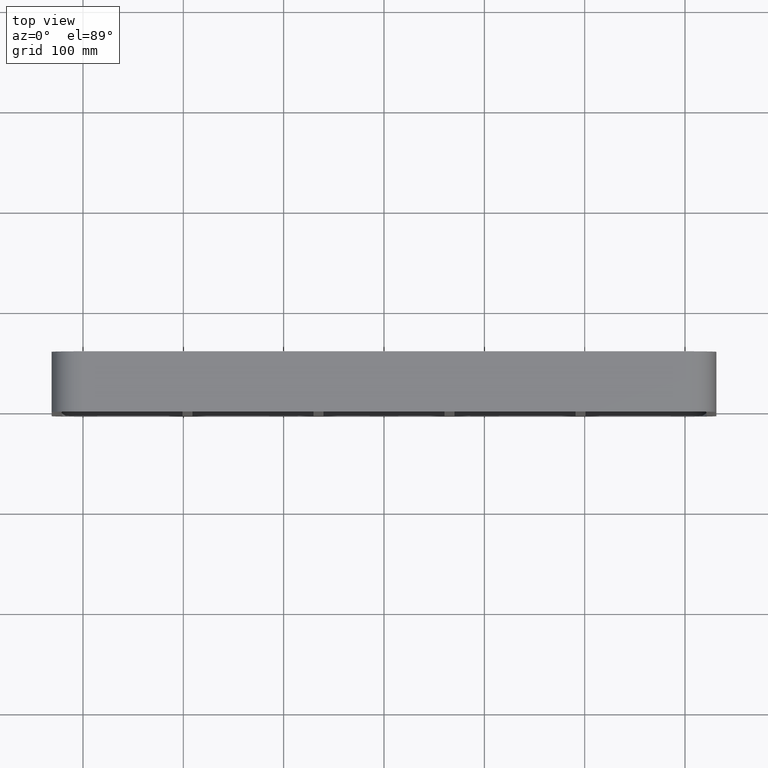
[diagram: clean part render]
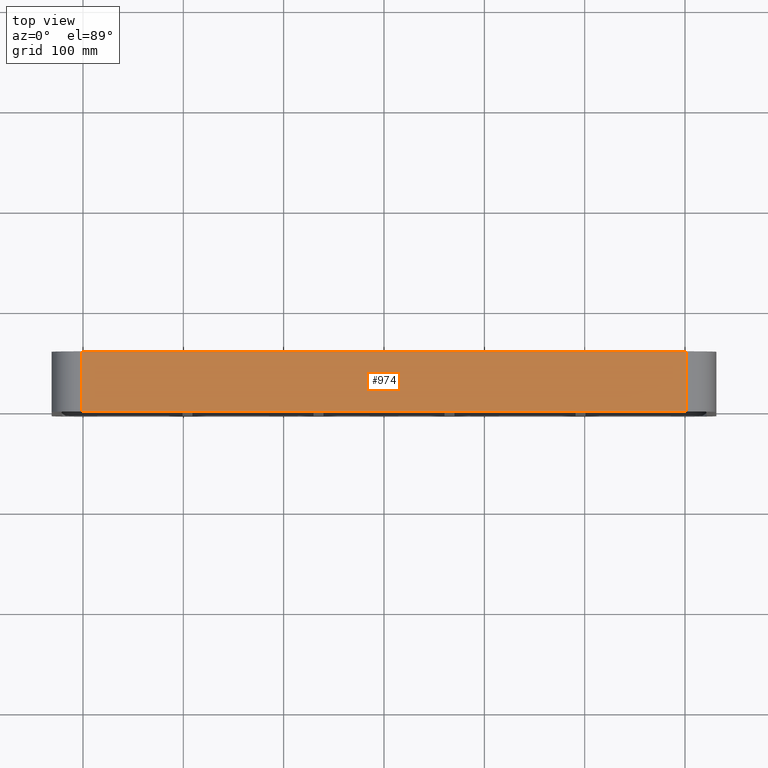
[diagram: same view with one face highlighted and labeled with its STEP entity id]
A machine part, top view. The second image highlights one B-rep face of the part: STEP entity #974.
In plain terms, the highlighted planar face has unit normal (0, 0, 1).
Its self-contained STEP definition (entity closure, byte-faithful):
#700=CARTESIAN_POINT('',(301.25,-3.0,149.0));
#701=VERTEX_POINT('',#700);
#709=CARTESIAN_POINT('',(-301.25,-3.0,149.0));
#710=VERTEX_POINT('',#709);
#711=CARTESIAN_POINT('',(301.25,-3.0,149.0));
#712=DIRECTION('',(-1.0,0.0,0.0));
#713=VECTOR('',#712,602.5);
#714=LINE('',#711,#713);
#715=EDGE_CURVE('',#701,#710,#714,.T.);
#859=CARTESIAN_POINT('',(301.25,57.0,149.0));
#860=VERTEX_POINT('',#859);
#868=CARTESIAN_POINT('',(301.25,57.0,149.0));
#869=DIRECTION('',(0.0,-1.0,0.0));
#870=VECTOR('',#869,60.0);
#871=LINE('',#868,#870);
#872=EDGE_CURVE('',#860,#701,#871,.T.);
#938=CARTESIAN_POINT('',(-301.25,57.0,149.0));
#939=VERTEX_POINT('',#938);
#949=CARTESIAN_POINT('',(-301.25,-3.0,149.0));
#950=DIRECTION('',(0.0,1.0,0.0));
#951=VECTOR('',#950,60.0);
#952=LINE('',#949,#951);
#953=EDGE_CURVE('',#710,#939,#952,.T.);
#958=CARTESIAN_POINT('',(-331.25,0.0,149.0));
#959=DIRECTION('',(0.0,0.0,1.0));
#960=DIRECTION('',(1.0,0.0,0.0));
#961=AXIS2_PLACEMENT_3D('',#958,#959,#960);
#962=PLANE('',#961);
#963=ORIENTED_EDGE('',*,*,#872,.F.);
#964=CARTESIAN_POINT('',(-301.25,57.0,149.0));
#965=DIRECTION('',(1.0,0.0,0.0));
#966=VECTOR('',#965,602.5);
#967=LINE('',#964,#966);
#968=EDGE_CURVE('',#939,#860,#967,.T.);
#969=ORIENTED_EDGE('',*,*,#968,.F.);
#970=ORIENTED_EDGE('',*,*,#953,.F.);
#971=ORIENTED_EDGE('',*,*,#715,.F.);
#972=EDGE_LOOP('',(#963,#969,#970,#971));
#973=FACE_OUTER_BOUND('',#972,.T.);
#974=ADVANCED_FACE('',(#973),#962,.T.);